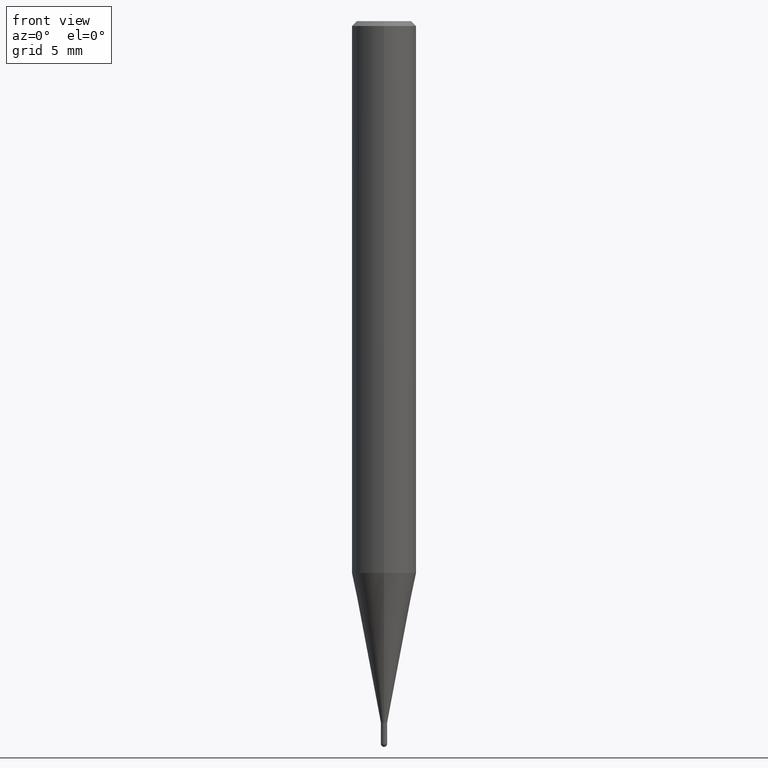
[diagram: clean part render]
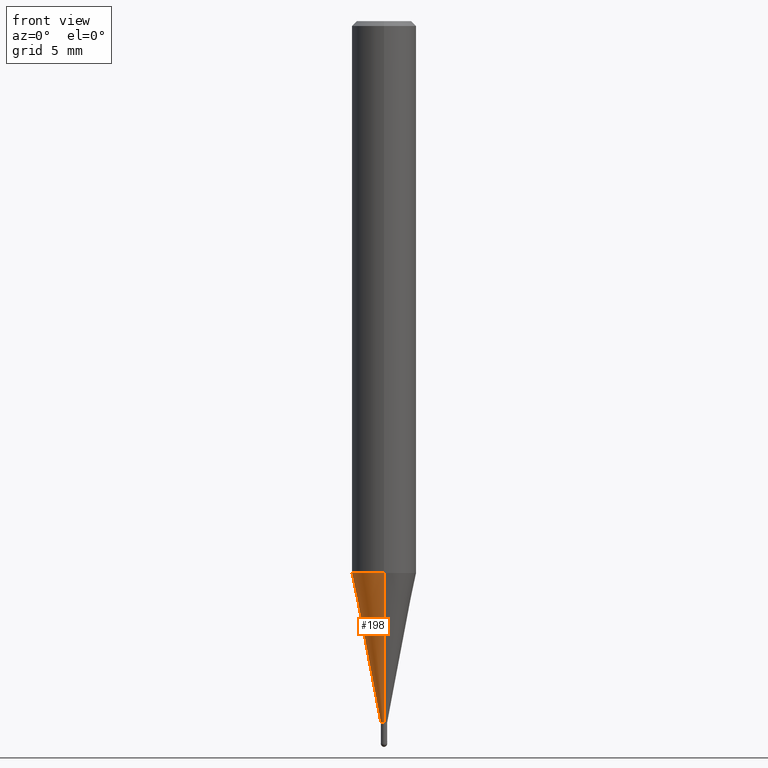
[diagram: same view with one face highlighted and labeled with its STEP entity id]
A machine part, front view. The second image highlights one B-rep face of the part: STEP entity #198.
In plain terms, the highlighted conical surface has half-angle 11 deg.
Its self-contained STEP definition (entity closure, byte-faithful):
#96=EDGE_CURVE('',#136,#120,#237,.T.);
#106=EDGE_CURVE('',#150,#120,#250,.T.);
#120=VERTEX_POINT('',#266);
#136=VERTEX_POINT('',#286);
#150=VERTEX_POINT('',#302);
#152=VERTEX_POINT('',#304);
#154=EDGE_CURVE('',#150,#152,#306,.T.);
#184=EDGE_CURVE('',#152,#136,#339,.T.);
#198=ADVANCED_FACE('',(#354),#355,.T.);
#237=LINE('',#388,#389);
#250=CIRCLE('',#404,0.19495);
#266=CARTESIAN_POINT('',(0.0,0.19495,-43.5));
#286=CARTESIAN_POINT('',(0.0,1.99995,-34.214));
#302=CARTESIAN_POINT('',(2.38737008677672E-017,-0.19495,-43.5));
#304=CARTESIAN_POINT('',(2.44915147732706E-016,-1.99995,-34.214));
#306=LINE('',#470,#471);
#339=CIRCLE('',#512,1.99995);
#354=FACE_OUTER_BOUND('',#531,.T.);
#355=CONICAL_SURFACE('',#532,1.09745,0.191984604054908);
#388=CARTESIAN_POINT('',(-1.34394424300237E-016,1.09745,-38.857));
#389=VECTOR('',#559,1.0);
#404=AXIS2_PLACEMENT_3D('',#577,#578,#579);
#470=CARTESIAN_POINT('',(1.34394424300237E-016,-1.09745,-38.857));
#471=VECTOR('',#659,1.0);
#512=AXIS2_PLACEMENT_3D('',#697,#698,#699);
#531=EDGE_LOOP('',(#716,#717,#718,#719));
#532=AXIS2_PLACEMENT_3D('',#720,#721,#722);
#559=DIRECTION('',(2.33663968307108E-017,-0.190807411359389,-0.981627491348082));
#577=CARTESIAN_POINT('',(0.0,0.0,-43.5));
#578=DIRECTION('',(0.0,0.0,-1.0));
#579=DIRECTION('',(0.0,1.0,0.0));
#659=DIRECTION('',(2.33663968307108E-017,-0.190807411359389,0.981627491348082));
#697=CARTESIAN_POINT('',(0.0,0.0,-34.214));
#698=DIRECTION('',(0.0,0.0,-1.0));
#699=DIRECTION('',(0.0,1.0,0.0));
#716=ORIENTED_EDGE('',*,*,#96,.T.);
#717=ORIENTED_EDGE('',*,*,#106,.F.);
#718=ORIENTED_EDGE('',*,*,#154,.T.);
#719=ORIENTED_EDGE('',*,*,#184,.T.);
#720=CARTESIAN_POINT('',(0.0,0.0,-38.857));
#721=DIRECTION('',(-0.0,-0.0,1.0));
#722=DIRECTION('',(0.0,1.0,0.0));